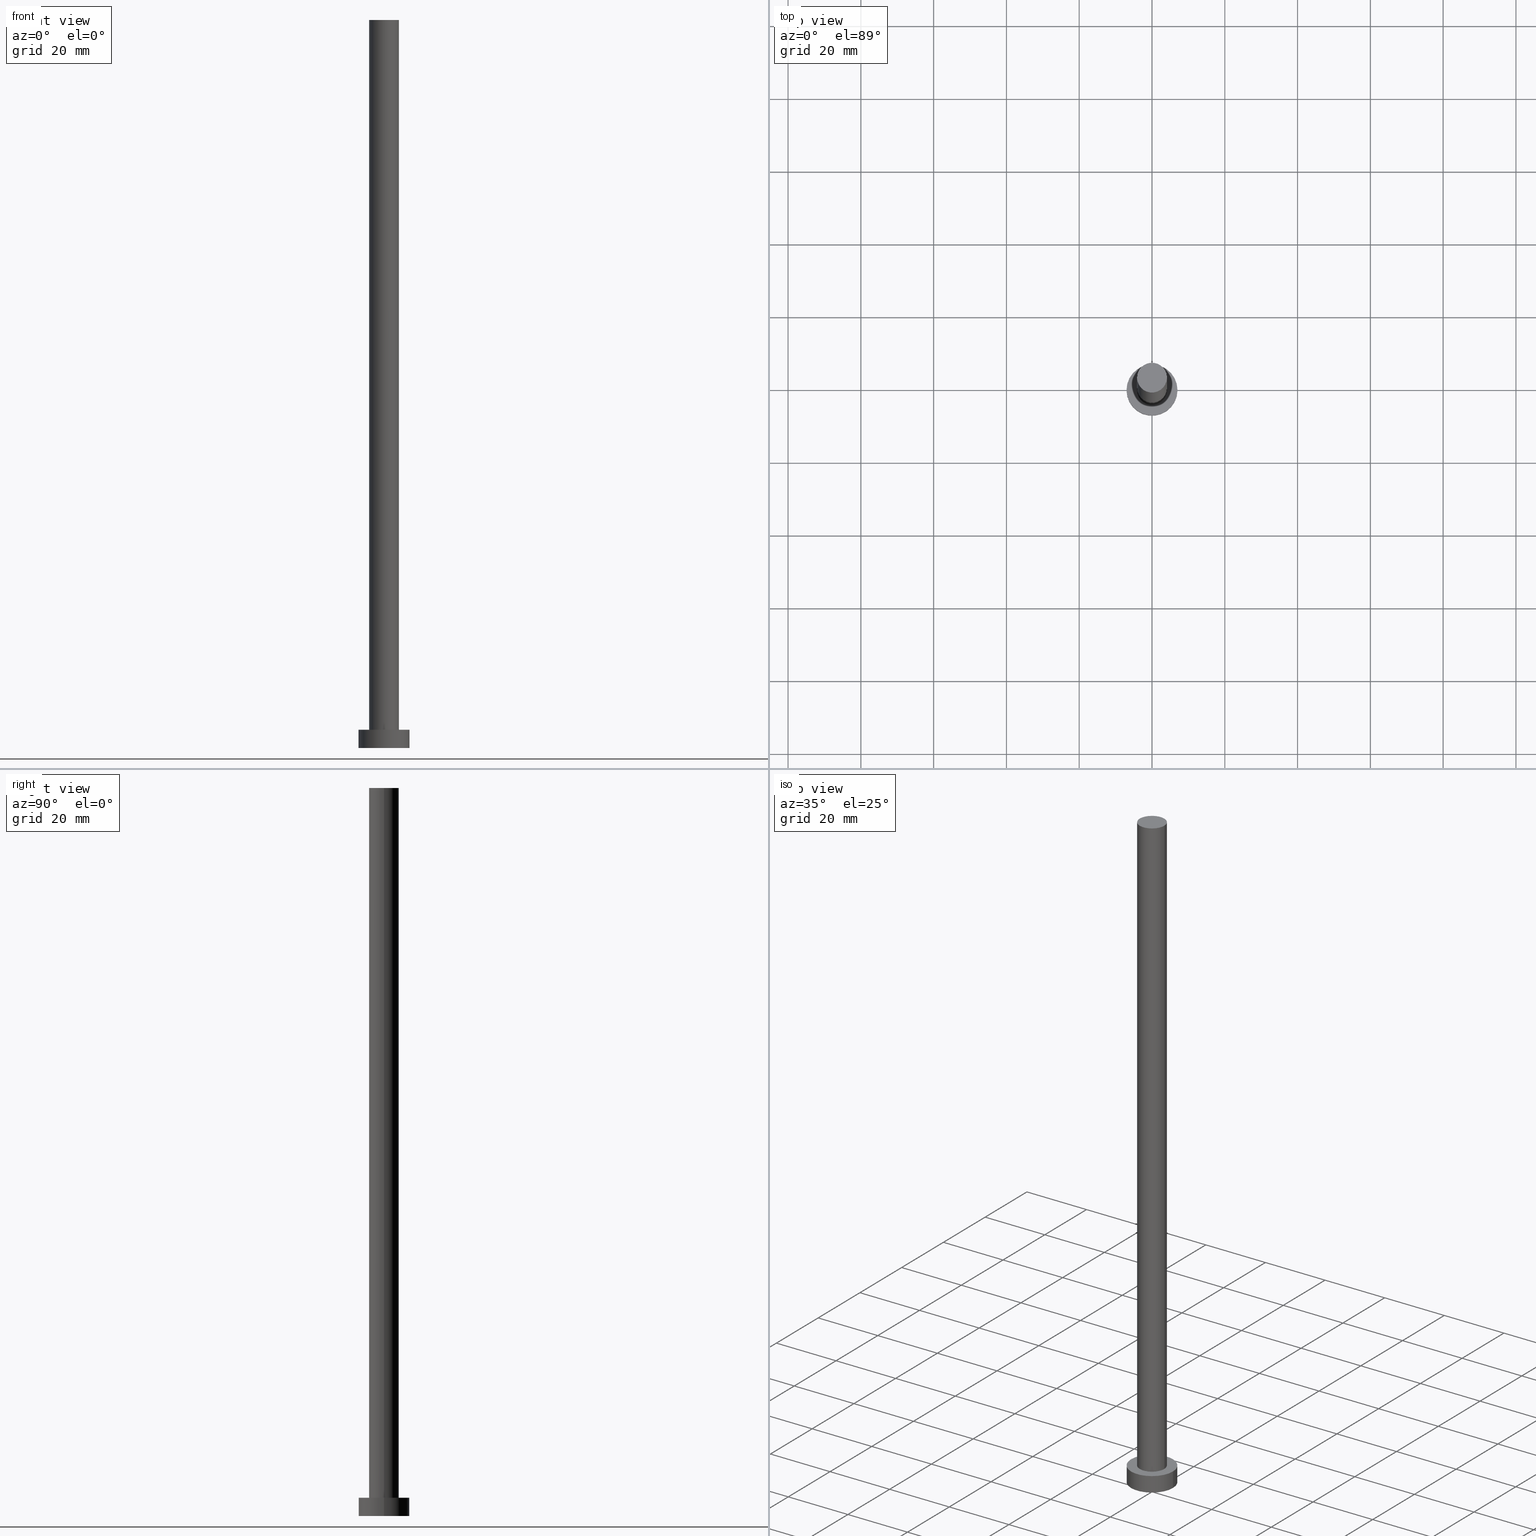
[diagram: canonical four-view strip — front | top / right | iso, engineering-drawing reading convention]
A machine part, canonical four-view strip (front | top / right | iso — engineering-drawing reading convention). The complete STEP part file that produces these views, byte-faithful:
ISO-10303-21;
HEADER;
FILE_DESCRIPTION (( 'STEP AP203' ),
    '1' );
FILE_NAME ('f026.STEP',
    '2023-02-13T12:54:44',
    ( '' ),
    ( '' ),
    'SwSTEP 2.0',
    'SolidWorks 2019',
    '' );
FILE_SCHEMA (( 'CONFIG_CONTROL_DESIGN' ));
ENDSEC;

DATA;
#1 = EDGE_LOOP ( 'NONE', ( #218, #125 ) ) ;
#2 = DATE_AND_TIME ( #168, #89 ) ;
#3 = CIRCLE ( 'NONE', #207, 7.000000000000000000 ) ;
#4 = APPROVAL_ROLE ( '' ) ;
#5 = DIRECTION ( 'NONE',  ( 1.000000000000000000, 0.000000000000000000, -0.000000000000000000 ) ) ;
#6 = APPROVAL_PERSON_ORGANIZATION ( #255, #31, #4 ) ;
#7 = EDGE_CURVE ( 'NONE', #35, #231, #204, .T. ) ;
#8 = DIRECTION ( 'NONE',  ( -0.000000000000000000, -0.000000000000000000, -1.000000000000000000 ) ) ;
#9 = CARTESIAN_POINT ( 'NONE',  ( 0.000000000000000000, 0.000000000000000000, 5.000000000000000000 ) ) ;
#10 = CARTESIAN_POINT ( 'NONE',  ( 0.000000000000000000, 0.000000000000000000, 5.000000000000000000 ) ) ;
#11 = DIRECTION ( 'NONE',  ( 1.000000000000000000, 0.000000000000000000, 0.000000000000000000 ) ) ;
#12 =( LENGTH_UNIT ( ) NAMED_UNIT ( * ) SI_UNIT ( .MILLI., .METRE. ) );
#13 = AXIS2_PLACEMENT_3D ( 'NONE', #9, #156, #120 ) ;
#14 = CC_DESIGN_PERSON_AND_ORGANIZATION_ASSIGNMENT ( #21, #91, ( #188 ) ) ;
#15 = DIRECTION ( 'NONE',  ( 0.000000000000000000, 0.000000000000000000, 1.000000000000000000 ) ) ;
#16 = DIRECTION ( 'NONE',  ( -0.000000000000000000, -0.000000000000000000, -1.000000000000000000 ) ) ;
#17 = ADVANCED_FACE ( 'NONE', ( #121 ), #42, .T. ) ;
#18 = AXIS2_PLACEMENT_3D ( 'NONE', #10, #27, #245 ) ;
#19 = ORIENTED_EDGE ( 'NONE', *, *, #60, .F. ) ;
#20 = DIRECTION ( 'NONE',  ( 1.000000000000000000, 0.000000000000000000, 0.000000000000000000 ) ) ;
#21 = PERSON_AND_ORGANIZATION ( #32, #107 ) ;
#22 = EDGE_LOOP ( 'NONE', ( #23, #214, #55, #127 ) ) ;
#23 = ORIENTED_EDGE ( 'NONE', *, *, #185, .F. ) ;
#24 = EDGE_CURVE ( 'NONE', #112, #43, #212, .T. ) ;
#25 = APPROVAL_DATE_TIME ( #243, #216 ) ;
#26 = APPROVAL_PERSON_ORGANIZATION ( #221, #216, #118 ) ;
#27 = DIRECTION ( 'NONE',  ( 0.000000000000000000, 0.000000000000000000, 1.000000000000000000 ) ) ;
#28 = CC_DESIGN_APPROVAL ( #216, ( #177 ) ) ;
#29 = CYLINDRICAL_SURFACE ( 'NONE', #198, 7.000000000000000000 ) ;
#30 = APPLICATION_PROTOCOL_DEFINITION ( 'international standard', 'config_control_design', 1994, #162 ) ;
#31 = APPROVAL ( #37, 'NEUR�EN�' ) ;
#32 = PERSON ( 'NEUR�EN�', 'NEUR�EN�', 'NEUR�EN�', ('NEUR�EN�'), ('NEUR�EN�'), ('NEUR�EN�') ) ;
#33 = PERSON_AND_ORGANIZATION_ROLE ( 'design_owner' ) ;
#34 = CALENDAR_DATE ( 2023, 13, 2 ) ;
#35 = VERTEX_POINT ( 'NONE', #96 ) ;
#36 = EDGE_CURVE ( 'NONE', #195, #244, #58, .T. ) ;
#37 = APPROVAL_STATUS ( 'not_yet_approved' ) ;
#38 = DIRECTION ( 'NONE',  ( 0.000000000000000000, 0.000000000000000000, 1.000000000000000000 ) ) ;
#39 = DIRECTION ( 'NONE',  ( 0.000000000000000000, 0.000000000000000000, 1.000000000000000000 ) ) ;
#40 = PERSON_AND_ORGANIZATION ( #32, #107 ) ;
#41 = PLANE ( 'NONE',  #101 ) ;
#42 = CYLINDRICAL_SURFACE ( 'NONE', #189, 7.000000000000000000 ) ;
#43 = VERTEX_POINT ( 'NONE', #235 ) ;
#44 = ORIENTED_EDGE ( 'NONE', *, *, #60, .T. ) ;
#45 = PRODUCT_DEFINITION ( 'NEZN�M�', '', #188, #135 ) ;
#46 = CARTESIAN_POINT ( 'NONE',  ( 4.099999999999999645, 5.021051876504147385E-16, 5.000000000000000000 ) ) ;
#47 = CIRCLE ( 'NONE', #182, 4.099999999999999645 ) ;
#48 = COORDINATED_UNIVERSAL_TIME_OFFSET ( 1, 0, .AHEAD. ) ;
#49 = CC_DESIGN_PERSON_AND_ORGANIZATION_ASSIGNMENT ( #81, #33, ( #224 ) ) ;
#50 = CARTESIAN_POINT ( 'NONE',  ( -7.000000000000000000, 0.000000000000000000, 5.000000000000000000 ) ) ;
#51 = APPROVAL_DATE_TIME ( #2, #79 ) ;
#52 = LOCAL_TIME ( 13, 54, 44.00000000000000000, #153 ) ;
#53 = CARTESIAN_POINT ( 'NONE',  ( 7.000000000000000000, 8.572527594031473190E-16, 5.000000000000000000 ) ) ;
#54 =( GEOMETRIC_REPRESENTATION_CONTEXT ( 3 ) GLOBAL_UNCERTAINTY_ASSIGNED_CONTEXT ( ( #115 ) ) GLOBAL_UNIT_ASSIGNED_CONTEXT ( ( #12, #144, #111 ) ) REPRESENTATION_CONTEXT ( 'NONE', 'WORKASPACE' ) );
#55 = ORIENTED_EDGE ( 'NONE', *, *, #246, .T. ) ;
#56 = ORIENTED_EDGE ( 'NONE', *, *, #194, .F. ) ;
#57 = APPROVAL_STATUS ( 'not_yet_approved' ) ;
#58 = CIRCLE ( 'NONE', #225, 4.099999999999999645 ) ;
#59 = DIRECTION ( 'NONE',  ( -0.000000000000000000, -0.000000000000000000, -1.000000000000000000 ) ) ;
#60 = EDGE_CURVE ( 'NONE', #112, #142, #93, .T. ) ;
#61 = COORDINATED_UNIVERSAL_TIME_OFFSET ( 1, 0, .AHEAD. ) ;
#62 = DIRECTION ( 'NONE',  ( 1.000000000000000000, 0.000000000000000000, -0.000000000000000000 ) ) ;
#63 = FACE_OUTER_BOUND ( 'NONE', #22, .T. ) ;
#64 = PERSON_AND_ORGANIZATION_ROLE ( 'classification_officer' ) ;
#65 = DATE_AND_TIME ( #211, #78 ) ;
#66 = DIRECTION ( 'NONE',  ( 0.000000000000000000, 0.000000000000000000, 1.000000000000000000 ) ) ;
#67 = APPROVAL_DATE_TIME ( #65, #31 ) ;
#68 = EDGE_LOOP ( 'NONE', ( #193, #92 ) ) ;
#69 = CC_DESIGN_DATE_AND_TIME_ASSIGNMENT ( #217, #154, ( #177 ) ) ;
#70 = LINE ( 'NONE', #114, #88 ) ;
#71 = LOCAL_TIME ( 13, 54, 44.00000000000000000, #48 ) ;
#72 = CC_DESIGN_PERSON_AND_ORGANIZATION_ASSIGNMENT ( #40, #64, ( #177 ) ) ;
#73 = CALENDAR_DATE ( 2023, 13, 2 ) ;
#74 = CARTESIAN_POINT ( 'NONE',  ( 0.000000000000000000, 0.000000000000000000, 200.0000000000000000 ) ) ;
#75 = PERSON_AND_ORGANIZATION ( #32, #107 ) ;
#76 = FACE_OUTER_BOUND ( 'NONE', #68, .T. ) ;
#77 = CIRCLE ( 'NONE', #252, 4.099999999999999645 ) ;
#78 = LOCAL_TIME ( 13, 54, 44.00000000000000000, #85 ) ;
#79 = APPROVAL ( #158, 'NEUR�EN�' ) ;
#80 = CARTESIAN_POINT ( 'NONE',  ( 0.000000000000000000, 0.000000000000000000, 5.000000000000000000 ) ) ;
#81 = PERSON_AND_ORGANIZATION ( #32, #107 ) ;
#82 = DIRECTION ( 'NONE',  ( 1.000000000000000000, 0.000000000000000000, 0.000000000000000000 ) ) ;
#83 = COORDINATED_UNIVERSAL_TIME_OFFSET ( 1, 0, .AHEAD. ) ;
#84 = EDGE_CURVE ( 'NONE', #43, #112, #104, .T. ) ;
#85 = COORDINATED_UNIVERSAL_TIME_OFFSET ( 1, 0, .AHEAD. ) ;
#86 = ORIENTED_EDGE ( 'NONE', *, *, #24, .F. ) ;
#87 = CARTESIAN_POINT ( 'NONE',  ( 0.000000000000000000, 0.000000000000000000, 0.000000000000000000 ) ) ;
#88 = VECTOR ( 'NONE', #117, 1000.000000000000000 ) ;
#89 = LOCAL_TIME ( 13, 54, 44.00000000000000000, #61 ) ;
#90 = CARTESIAN_POINT ( 'NONE',  ( 0.000000000000000000, 0.000000000000000000, 0.000000000000000000 ) ) ;
#91 = PERSON_AND_ORGANIZATION_ROLE ( 'design_supplier' ) ;
#92 = ORIENTED_EDGE ( 'NONE', *, *, #185, .T. ) ;
#93 = LINE ( 'NONE', #50, #141 ) ;
#94 = SHAPE_DEFINITION_REPRESENTATION ( #247, #140 ) ;
#95 = CC_DESIGN_SECURITY_CLASSIFICATION ( #177, ( #188 ) ) ;
#96 = CARTESIAN_POINT ( 'NONE',  ( -4.099999999999999645, 0.000000000000000000, 5.000000000000000000 ) ) ;
#97 = EDGE_CURVE ( 'NONE', #238, #142, #3, .T. ) ;
#98 = CARTESIAN_POINT ( 'NONE',  ( -7.000000000000000000, 0.000000000000000000, 0.000000000000000000 ) ) ;
#99 = ORIENTED_EDGE ( 'NONE', *, *, #97, .F. ) ;
#100 = CARTESIAN_POINT ( 'NONE',  ( 0.000000000000000000, 0.000000000000000000, 5.000000000000000000 ) ) ;
#101 = AXIS2_PLACEMENT_3D ( 'NONE', #159, #249, #62 ) ;
#102 = FACE_BOUND ( 'NONE', #1, .T. ) ;
#103 = CARTESIAN_POINT ( 'NONE',  ( -4.099999999999999645, 0.000000000000000000, 200.0000000000000000 ) ) ;
#104 = CIRCLE ( 'NONE', #171, 7.000000000000000000 ) ;
#105 = CARTESIAN_POINT ( 'NONE',  ( 0.000000000000000000, 0.000000000000000000, 200.0000000000000000 ) ) ;
#106 = EDGE_CURVE ( 'NONE', #195, #35, #70, .T. ) ;
#107 = ORGANIZATION ( 'NEUR�EN�', 'NEUR�EN�', '' ) ;
#108 = ORIENTED_EDGE ( 'NONE', *, *, #24, .T. ) ;
#109 = APPLICATION_CONTEXT ( 'configuration controlled 3d designs of mechanical parts and assemblies' ) ;
#110 = DIRECTION ( 'NONE',  ( 1.000000000000000000, 0.000000000000000000, 0.000000000000000000 ) ) ;
#111 =( NAMED_UNIT ( * ) SI_UNIT ( $, .STERADIAN. ) SOLID_ANGLE_UNIT ( ) );
#112 = VERTEX_POINT ( 'NONE', #239 ) ;
#113 = CARTESIAN_POINT ( 'NONE',  ( 0.000000000000000000, 0.000000000000000000, 0.000000000000000000 ) ) ;
#114 = CARTESIAN_POINT ( 'NONE',  ( -4.099999999999999645, 0.000000000000000000, 200.0000000000000000 ) ) ;
#115 = UNCERTAINTY_MEASURE_WITH_UNIT (LENGTH_MEASURE( 1.000000000000000082E-05 ), #12, 'distance_accuracy_value', 'NONE');
#116 = CYLINDRICAL_SURFACE ( 'NONE', #190, 4.099999999999999645 ) ;
#117 = DIRECTION ( 'NONE',  ( -0.000000000000000000, -0.000000000000000000, -1.000000000000000000 ) ) ;
#118 = APPROVAL_ROLE ( '' ) ;
#119 = DIRECTION ( 'NONE',  ( -0.000000000000000000, -0.000000000000000000, -1.000000000000000000 ) ) ;
#120 = DIRECTION ( 'NONE',  ( 1.000000000000000000, 0.000000000000000000, 0.000000000000000000 ) ) ;
#121 = FACE_OUTER_BOUND ( 'NONE', #205, .T. ) ;
#122 = DIRECTION ( 'NONE',  ( -1.000000000000000000, 0.000000000000000000, 0.000000000000000000 ) ) ;
#123 = CARTESIAN_POINT ( 'NONE',  ( 7.000000000000000000, 8.572527594031473190E-16, 0.000000000000000000 ) ) ;
#124 = VECTOR ( 'NONE', #119, 1000.000000000000000 ) ;
#125 = ORIENTED_EDGE ( 'NONE', *, *, #246, .F. ) ;
#126 = CYLINDRICAL_SURFACE ( 'NONE', #131, 4.099999999999999645 ) ;
#127 = ORIENTED_EDGE ( 'NONE', *, *, #106, .F. ) ;
#128 = ORIENTED_EDGE ( 'NONE', *, *, #230, .F. ) ;
#129 = DIRECTION ( 'NONE',  ( 1.000000000000000000, 0.000000000000000000, 0.000000000000000000 ) ) ;
#130 = EDGE_LOOP ( 'NONE', ( #56, #236, #134, #228 ) ) ;
#131 = AXIS2_PLACEMENT_3D ( 'NONE', #105, #16, #167 ) ;
#132 = FACE_OUTER_BOUND ( 'NONE', #197, .T. ) ;
#133 = ADVANCED_FACE ( 'NONE', ( #132 ), #237, .F. ) ;
#134 = ORIENTED_EDGE ( 'NONE', *, *, #106, .T. ) ;
#135 = DESIGN_CONTEXT ( 'detailed design', #162, 'design' ) ;
#136 = DIRECTION ( 'NONE',  ( -1.000000000000000000, 0.000000000000000000, 0.000000000000000000 ) ) ;
#137 = DIRECTION ( 'NONE',  ( 0.000000000000000000, 0.000000000000000000, 1.000000000000000000 ) ) ;
#138 = EDGE_CURVE ( 'NONE', #43, #238, #152, .T. ) ;
#139 = MECHANICAL_CONTEXT ( 'NONE', #109, 'mechanical' ) ;
#140 = ADVANCED_BREP_SHAPE_REPRESENTATION ( 'f026', ( #226, #219 ), #54 ) ;
#141 = VECTOR ( 'NONE', #176, 1000.000000000000000 ) ;
#142 = VERTEX_POINT ( 'NONE', #98 ) ;
#143 = ORIENTED_EDGE ( 'NONE', *, *, #97, .T. ) ;
#144 =( NAMED_UNIT ( * ) PLANE_ANGLE_UNIT ( ) SI_UNIT ( $, .RADIAN. ) );
#145 = CIRCLE ( 'NONE', #183, 7.000000000000000000 ) ;
#146 = PERSON_AND_ORGANIZATION ( #32, #107 ) ;
#147 = APPROVAL_PERSON_ORGANIZATION ( #75, #79, #250 ) ;
#148 = PRODUCT_RELATED_PRODUCT_CATEGORY ( 'detail', '', ( #224 ) ) ;
#149 = DIRECTION ( 'NONE',  ( 0.000000000000000000, 0.000000000000000000, 1.000000000000000000 ) ) ;
#150 = PERSON_AND_ORGANIZATION ( #32, #107 ) ;
#151 = ORIENTED_EDGE ( 'NONE', *, *, #138, .T. ) ;
#152 = LINE ( 'NONE', #53, #124 ) ;
#153 = COORDINATED_UNIVERSAL_TIME_OFFSET ( 1, 0, .AHEAD. ) ;
#154 = DATE_TIME_ROLE ( 'classification_date' ) ;
#155 = FACE_OUTER_BOUND ( 'NONE', #215, .T. ) ;
#156 = DIRECTION ( 'NONE',  ( 0.000000000000000000, 0.000000000000000000, 1.000000000000000000 ) ) ;
#157 = ORIENTED_EDGE ( 'NONE', *, *, #230, .T. ) ;
#158 = APPROVAL_STATUS ( 'not_yet_approved' ) ;
#159 = CARTESIAN_POINT ( 'NONE',  ( 0.000000000000000000, 0.000000000000000000, 200.0000000000000000 ) ) ;
#160 = CC_DESIGN_PERSON_AND_ORGANIZATION_ASSIGNMENT ( #146, #234, ( #45 ) ) ;
#161 = CLOSED_SHELL ( 'NONE', ( #254, #17, #169, #165, #133, #222, #201 ) ) ;
#162 = APPLICATION_CONTEXT ( 'configuration controlled 3d designs of mechanical parts and assemblies' ) ;
#163 = DIRECTION ( 'NONE',  ( 1.000000000000000000, 0.000000000000000000, 0.000000000000000000 ) ) ;
#164 = CARTESIAN_POINT ( 'NONE',  ( 0.000000000000000000, 0.000000000000000000, 0.000000000000000000 ) ) ;
#165 = ADVANCED_FACE ( 'NONE', ( #102, #155 ), #248, .T. ) ;
#166 = DIRECTION ( 'NONE',  ( 0.000000000000000000, 0.000000000000000000, 1.000000000000000000 ) ) ;
#167 = DIRECTION ( 'NONE',  ( -1.000000000000000000, 0.000000000000000000, 0.000000000000000000 ) ) ;
#168 = CALENDAR_DATE ( 2023, 13, 2 ) ;
#169 = ADVANCED_FACE ( 'NONE', ( #223 ), #29, .T. ) ;
#170 = APPLICATION_PROTOCOL_DEFINITION ( 'international standard', 'config_control_design', 1994, #109 ) ;
#171 = AXIS2_PLACEMENT_3D ( 'NONE', #210, #66, #129 ) ;
#172 = DIRECTION ( 'NONE',  ( -1.000000000000000000, 0.000000000000000000, 0.000000000000000000 ) ) ;
#173 = ORIENTED_EDGE ( 'NONE', *, *, #138, .F. ) ;
#174 = SECURITY_CLASSIFICATION_LEVEL ( 'unclassified' ) ;
#175 = CARTESIAN_POINT ( 'NONE',  ( 0.000000000000000000, 0.000000000000000000, 5.000000000000000000 ) ) ;
#176 = DIRECTION ( 'NONE',  ( -0.000000000000000000, -0.000000000000000000, -1.000000000000000000 ) ) ;
#177 = SECURITY_CLASSIFICATION ( '', '', #174 ) ;
#178 = CARTESIAN_POINT ( 'NONE',  ( 0.000000000000000000, 0.000000000000000000, 200.0000000000000000 ) ) ;
#179 = ORIENTED_EDGE ( 'NONE', *, *, #84, .F. ) ;
#180 = VECTOR ( 'NONE', #206, 1000.000000000000000 ) ;
#181 = DIRECTION ( 'NONE',  ( -0.000000000000000000, -0.000000000000000000, -1.000000000000000000 ) ) ;
#182 = AXIS2_PLACEMENT_3D ( 'NONE', #74, #137, #11 ) ;
#183 = AXIS2_PLACEMENT_3D ( 'NONE', #164, #251, #82 ) ;
#184 = CARTESIAN_POINT ( 'NONE',  ( 4.099999999999999645, 5.021051876504147385E-16, 200.0000000000000000 ) ) ;
#185 = EDGE_CURVE ( 'NONE', #244, #195, #47, .T. ) ;
#186 = CARTESIAN_POINT ( 'NONE',  ( 4.099999999999999645, 5.021051876504147385E-16, 200.0000000000000000 ) ) ;
#187 = AXIS2_PLACEMENT_3D ( 'NONE', #175, #149, #110 ) ;
#188 = PRODUCT_DEFINITION_FORMATION_WITH_SPECIFIED_SOURCE ( 'LIBOVOLN�', '', #224, .NOT_KNOWN. ) ;
#189 = AXIS2_PLACEMENT_3D ( 'NONE', #202, #181, #172 ) ;
#190 = AXIS2_PLACEMENT_3D ( 'NONE', #200, #59, #136 ) ;
#191 = CC_DESIGN_APPROVAL ( #79, ( #45 ) ) ;
#192 = DATE_TIME_ROLE ( 'creation_date' ) ;
#193 = ORIENTED_EDGE ( 'NONE', *, *, #36, .T. ) ;
#194 = EDGE_CURVE ( 'NONE', #244, #231, #203, .T. ) ;
#195 = VERTEX_POINT ( 'NONE', #103 ) ;
#196 = DATE_AND_TIME ( #229, #208 ) ;
#197 = EDGE_LOOP ( 'NONE', ( #128, #99 ) ) ;
#198 = AXIS2_PLACEMENT_3D ( 'NONE', #100, #8, #122 ) ;
#199 = PERSON_AND_ORGANIZATION_ROLE ( 'creator' ) ;
#200 = CARTESIAN_POINT ( 'NONE',  ( 0.000000000000000000, 0.000000000000000000, 200.0000000000000000 ) ) ;
#201 = ADVANCED_FACE ( 'NONE', ( #76 ), #41, .T. ) ;
#202 = CARTESIAN_POINT ( 'NONE',  ( 0.000000000000000000, 0.000000000000000000, 5.000000000000000000 ) ) ;
#203 = LINE ( 'NONE', #184, #180 ) ;
#204 = CIRCLE ( 'NONE', #13, 4.099999999999999645 ) ;
#205 = EDGE_LOOP ( 'NONE', ( #179, #151, #143, #19 ) ) ;
#206 = DIRECTION ( 'NONE',  ( -0.000000000000000000, -0.000000000000000000, -1.000000000000000000 ) ) ;
#207 = AXIS2_PLACEMENT_3D ( 'NONE', #90, #38, #20 ) ;
#208 = LOCAL_TIME ( 13, 54, 44.00000000000000000, #83 ) ;
#209 = CC_DESIGN_DATE_AND_TIME_ASSIGNMENT ( #196, #192, ( #45 ) ) ;
#210 = CARTESIAN_POINT ( 'NONE',  ( 0.000000000000000000, 0.000000000000000000, 5.000000000000000000 ) ) ;
#211 = CALENDAR_DATE ( 2023, 13, 2 ) ;
#212 = CIRCLE ( 'NONE', #187, 7.000000000000000000 ) ;
#213 = DIRECTION ( 'NONE',  ( 1.000000000000000000, 0.000000000000000000, 0.000000000000000000 ) ) ;
#214 = ORIENTED_EDGE ( 'NONE', *, *, #194, .T. ) ;
#215 = EDGE_LOOP ( 'NONE', ( #108, #220 ) ) ;
#216 = APPROVAL ( #57, 'NEUR�EN�' ) ;
#217 = DATE_AND_TIME ( #34, #71 ) ;
#218 = ORIENTED_EDGE ( 'NONE', *, *, #7, .F. ) ;
#219 = AXIS2_PLACEMENT_3D ( 'NONE', #87, #15, #163 ) ;
#220 = ORIENTED_EDGE ( 'NONE', *, *, #84, .T. ) ;
#221 = PERSON_AND_ORGANIZATION ( #32, #107 ) ;
#222 = ADVANCED_FACE ( 'NONE', ( #241 ), #116, .T. ) ;
#223 = FACE_OUTER_BOUND ( 'NONE', #253, .T. ) ;
#224 = PRODUCT ( 'f026', 'f026', '', ( #139 ) ) ;
#225 = AXIS2_PLACEMENT_3D ( 'NONE', #178, #232, #213 ) ;
#226 = MANIFOLD_SOLID_BREP ( 'P�idat vysunut�m3', #161 ) ;
#227 = DIRECTION ( 'NONE',  ( 1.000000000000000000, 0.000000000000000000, 0.000000000000000000 ) ) ;
#228 = ORIENTED_EDGE ( 'NONE', *, *, #7, .T. ) ;
#229 = CALENDAR_DATE ( 2023, 13, 2 ) ;
#230 = EDGE_CURVE ( 'NONE', #142, #238, #145, .T. ) ;
#231 = VERTEX_POINT ( 'NONE', #46 ) ;
#232 = DIRECTION ( 'NONE',  ( 0.000000000000000000, 0.000000000000000000, 1.000000000000000000 ) ) ;
#233 = CC_DESIGN_APPROVAL ( #31, ( #188 ) ) ;
#234 = PERSON_AND_ORGANIZATION_ROLE ( 'creator' ) ;
#235 = CARTESIAN_POINT ( 'NONE',  ( 7.000000000000000000, 8.572527594031473190E-16, 5.000000000000000000 ) ) ;
#236 = ORIENTED_EDGE ( 'NONE', *, *, #36, .F. ) ;
#237 = PLANE ( 'NONE',  #242 ) ;
#238 = VERTEX_POINT ( 'NONE', #123 ) ;
#239 = CARTESIAN_POINT ( 'NONE',  ( -7.000000000000000000, 0.000000000000000000, 5.000000000000000000 ) ) ;
#240 = CC_DESIGN_PERSON_AND_ORGANIZATION_ASSIGNMENT ( #150, #199, ( #188 ) ) ;
#241 = FACE_OUTER_BOUND ( 'NONE', #130, .T. ) ;
#242 = AXIS2_PLACEMENT_3D ( 'NONE', #113, #39, #5 ) ;
#243 = DATE_AND_TIME ( #73, #52 ) ;
#244 = VERTEX_POINT ( 'NONE', #186 ) ;
#245 = DIRECTION ( 'NONE',  ( 1.000000000000000000, 0.000000000000000000, -0.000000000000000000 ) ) ;
#246 = EDGE_CURVE ( 'NONE', #231, #35, #77, .T. ) ;
#247 = PRODUCT_DEFINITION_SHAPE ( 'NONE', 'NONE',  #45 ) ;
#248 = PLANE ( 'NONE',  #18 ) ;
#249 = DIRECTION ( 'NONE',  ( 0.000000000000000000, 0.000000000000000000, 1.000000000000000000 ) ) ;
#250 = APPROVAL_ROLE ( '' ) ;
#251 = DIRECTION ( 'NONE',  ( 0.000000000000000000, 0.000000000000000000, 1.000000000000000000 ) ) ;
#252 = AXIS2_PLACEMENT_3D ( 'NONE', #80, #166, #227 ) ;
#253 = EDGE_LOOP ( 'NONE', ( #173, #86, #44, #157 ) ) ;
#254 = ADVANCED_FACE ( 'NONE', ( #63 ), #126, .T. ) ;
#255 = PERSON_AND_ORGANIZATION ( #32, #107 ) ;
ENDSEC;
END-ISO-10303-21;
